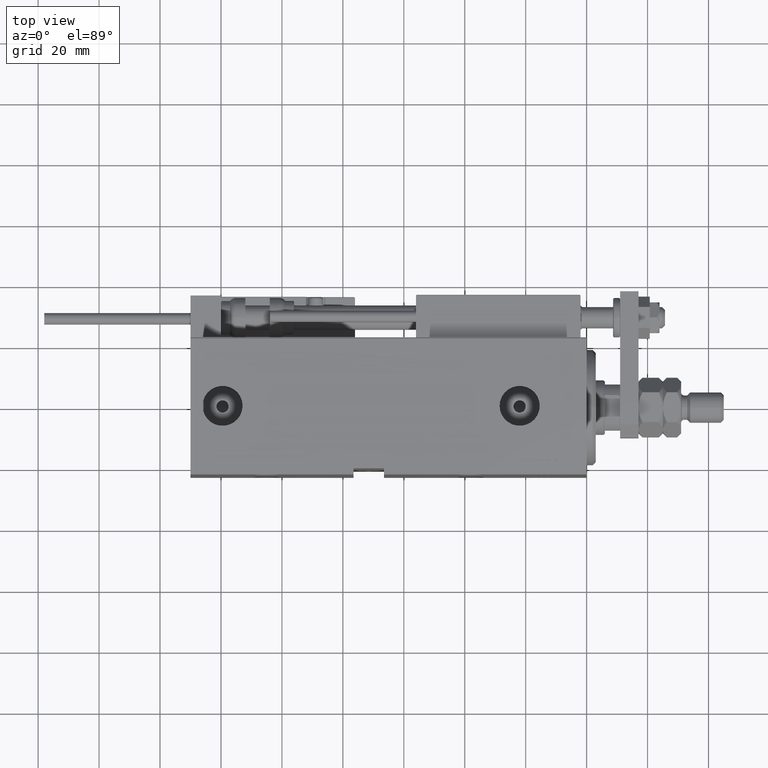
[diagram: clean part render]
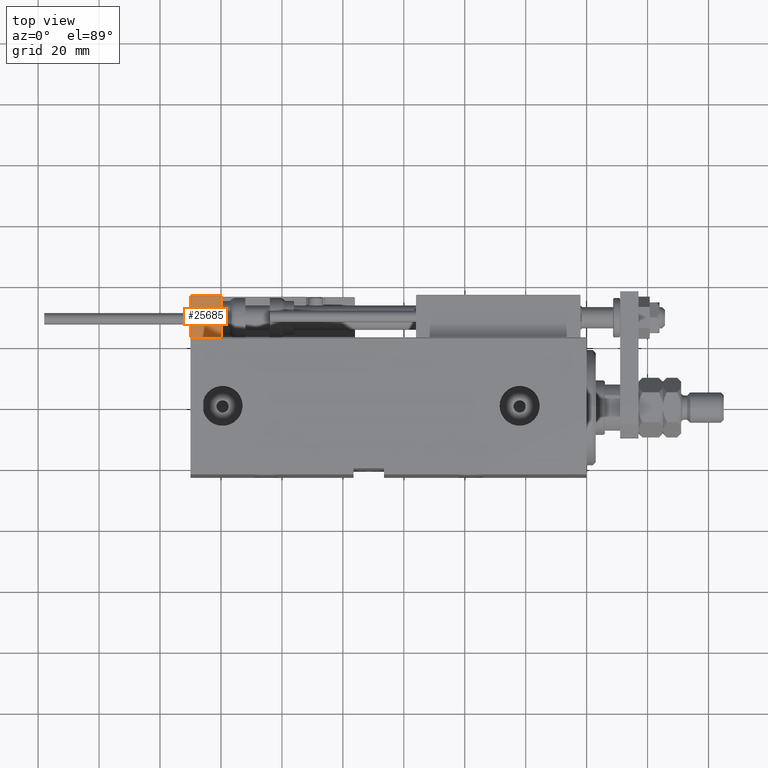
[diagram: same view with one face highlighted and labeled with its STEP entity id]
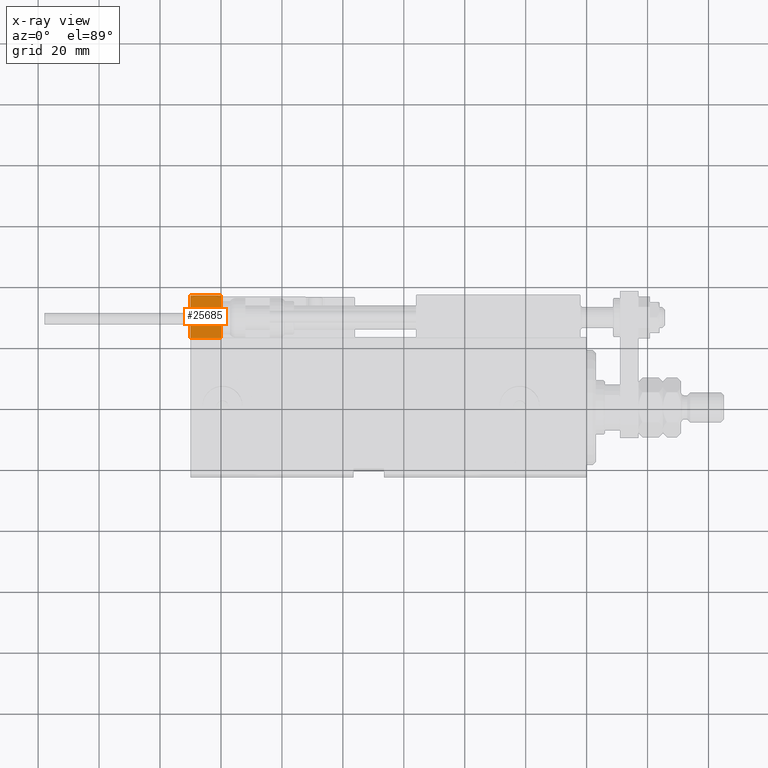
[diagram: x-ray of the same camera — body ghosted, the highlighted face saturated]
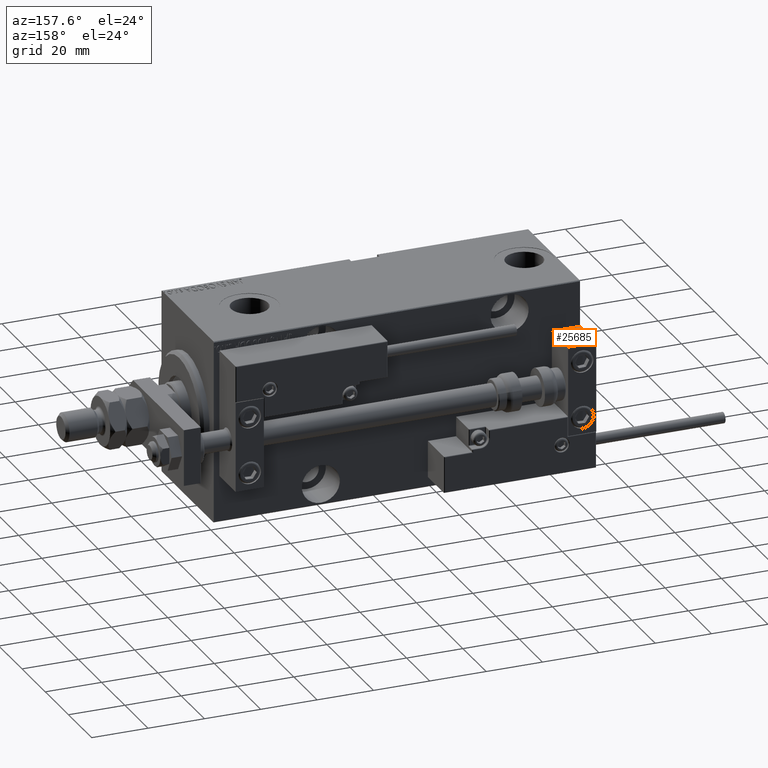
[diagram: same view with one face highlighted and labeled with its STEP entity id]
A machine part, top view. The second image highlights one B-rep face of the part: STEP entity #25685.
The next image is the same camera in x-ray: the body ghosted, the highlighted face saturated — about 0% of this face is hidden behind the body in this view.
A second angle (auxiliary view) of the same face is appended — the face is thin or edge-on in the first view.
In plain terms, the highlighted planar face has unit normal (0, 0, 1).
Its self-contained STEP definition (entity closure, byte-faithful):
#263 = CARTESIAN_POINT ( 'NONE',  ( 10.00000000000000000, -7.000000000000000000, -16.00000000000000711 ) ) ;
#763 = CARTESIAN_POINT ( 'NONE',  ( 10.00000000000000000, -7.000000000000000000, -16.00000000000000711 ) ) ;
#1335 = FACE_OUTER_BOUND ( 'NONE', #33392, .T. ) ;
#2409 = LINE ( 'NONE', #18659, #45111 ) ;
#4383 = VECTOR ( 'NONE', #50656, 1000.000000000000000 ) ;
#8661 = VERTEX_POINT ( 'NONE', #49536 ) ;
#13917 = CARTESIAN_POINT ( 'NONE',  ( 10.00000000000000000, 7.000000000000000000, -16.00000000000000711 ) ) ;
#16248 = DIRECTION ( 'NONE',  ( -1.000000000000000000, -0.000000000000000000, -0.000000000000000000 ) ) ;
#17314 = DIRECTION ( 'NONE',  ( 0.000000000000000000, 0.000000000000000000, -1.000000000000000000 ) ) ;
#18395 = DIRECTION ( 'NONE',  ( 0.000000000000000000, -1.000000000000000000, 0.000000000000000000 ) ) ;
#18659 = CARTESIAN_POINT ( 'NONE',  ( 10.00000000000000000, 7.000000000000000000, -16.00000000000000711 ) ) ;
#20985 = CARTESIAN_POINT ( 'NONE',  ( 10.00000000000000000, 7.000000000000000000, -16.00000000000000711 ) ) ;
#22843 = ORIENTED_EDGE ( 'NONE', *, *, #43589, .T. ) ;
#25685 = ADVANCED_FACE ( 'NONE', ( #1335 ), #48729, .T. ) ;
#26324 = LINE ( 'NONE', #31044, #4383 ) ;
#27821 = EDGE_CURVE ( 'NONE', #47299, #35643, #2409, .T. ) ;
#28708 = VECTOR ( 'NONE', #16248, 1000.000000000000000 ) ;
#31044 = CARTESIAN_POINT ( 'NONE',  ( 0.000000000000000000, 7.000000000000000000, -16.00000000000000711 ) ) ;
#31251 = DIRECTION ( 'NONE',  ( -1.000000000000000000, -0.000000000000000000, -0.000000000000000000 ) ) ;
#33022 = DIRECTION ( 'NONE',  ( -1.000000000000000000, 0.000000000000000000, -0.000000000000000000 ) ) ;
#33392 = EDGE_LOOP ( 'NONE', ( #50586, #49292, #37069, #22843 ) ) ;
#35643 = VERTEX_POINT ( 'NONE', #763 ) ;
#36135 = LINE ( 'NONE', #263, #28708 ) ;
#37069 = ORIENTED_EDGE ( 'NONE', *, *, #27821, .T. ) ;
#37560 = EDGE_CURVE ( 'NONE', #41182, #8661, #26324, .T. ) ;
#39828 = VECTOR ( 'NONE', #31251, 1000.000000000000000 ) ;
#41182 = VERTEX_POINT ( 'NONE', #41475 ) ;
#41475 = CARTESIAN_POINT ( 'NONE',  ( 0.000000000000000000, 7.000000000000000000, -16.00000000000000711 ) ) ;
#43589 = EDGE_CURVE ( 'NONE', #35643, #8661, #36135, .T. ) ;
#45111 = VECTOR ( 'NONE', #18395, 1000.000000000000000 ) ;
#45819 = AXIS2_PLACEMENT_3D ( 'NONE', #20985, #17314, #33022 ) ;
#46173 = CARTESIAN_POINT ( 'NONE',  ( 10.00000000000000000, 7.000000000000000000, -16.00000000000000711 ) ) ;
#47205 = LINE ( 'NONE', #46173, #39828 ) ;
#47299 = VERTEX_POINT ( 'NONE', #13917 ) ;
#48729 = PLANE ( 'NONE',  #45819 ) ;
#49292 = ORIENTED_EDGE ( 'NONE', *, *, #49513, .F. ) ;
#49513 = EDGE_CURVE ( 'NONE', #47299, #41182, #47205, .T. ) ;
#49536 = CARTESIAN_POINT ( 'NONE',  ( 0.000000000000000000, -7.000000000000000000, -16.00000000000000711 ) ) ;
#50586 = ORIENTED_EDGE ( 'NONE', *, *, #37560, .F. ) ;
#50656 = DIRECTION ( 'NONE',  ( 0.000000000000000000, -1.000000000000000000, 0.000000000000000000 ) ) ;